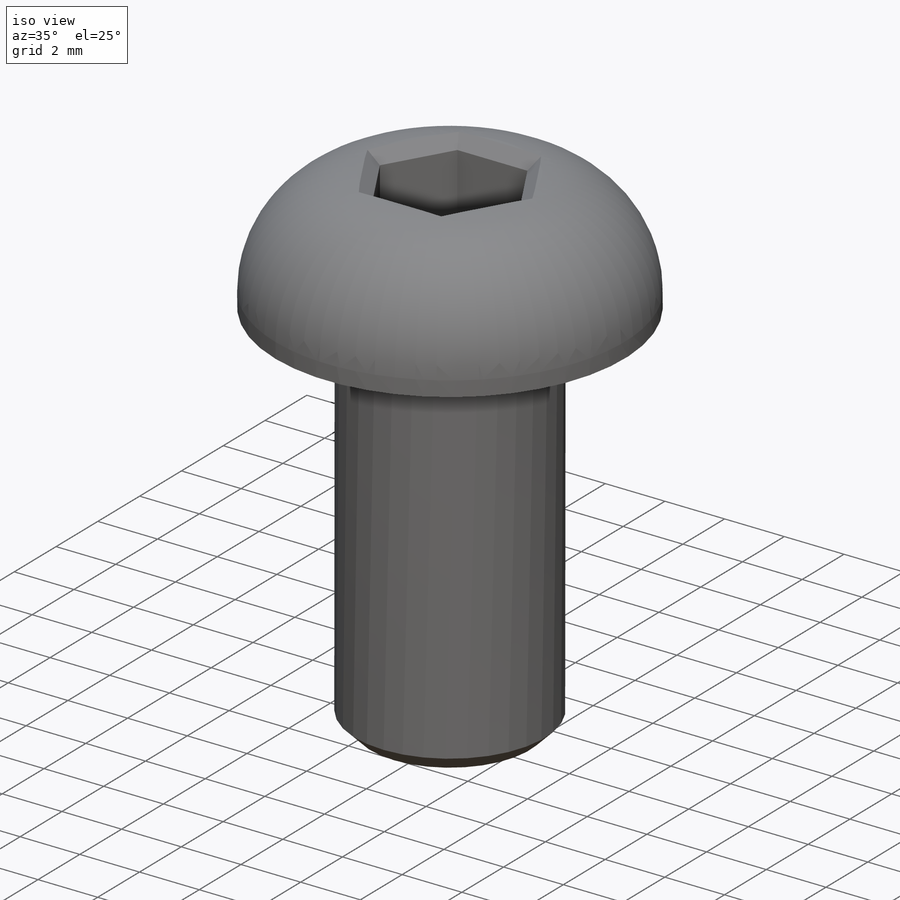
[diagram: iso view]
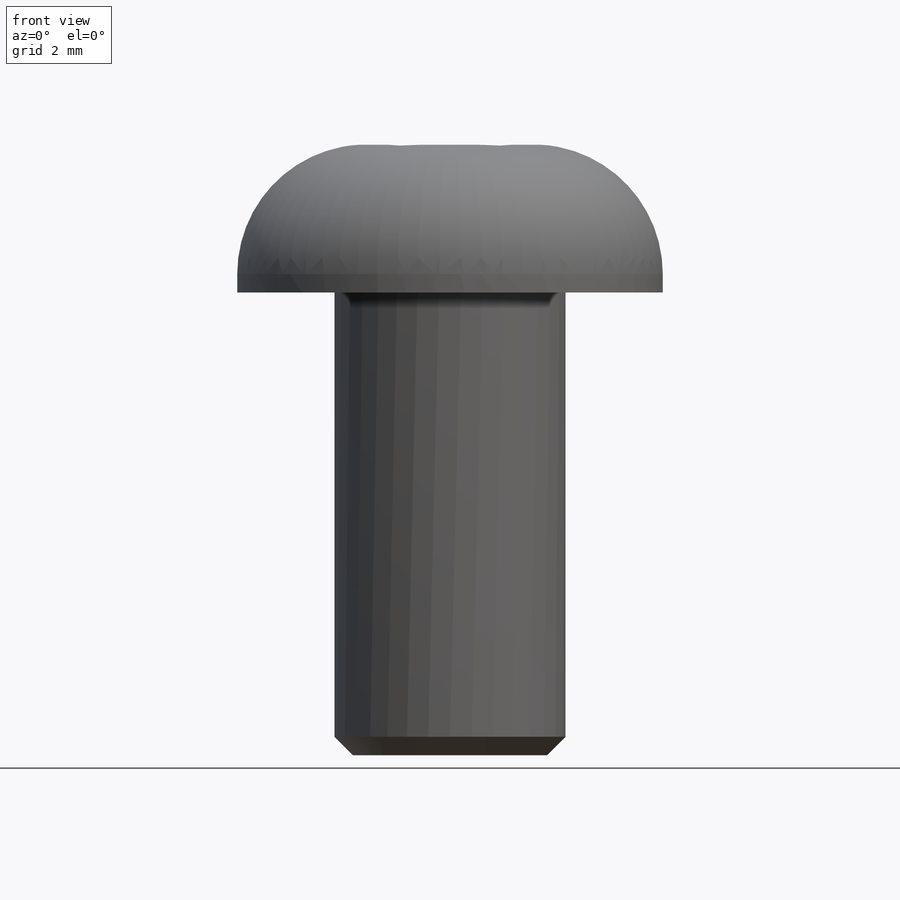
[diagram: front view]
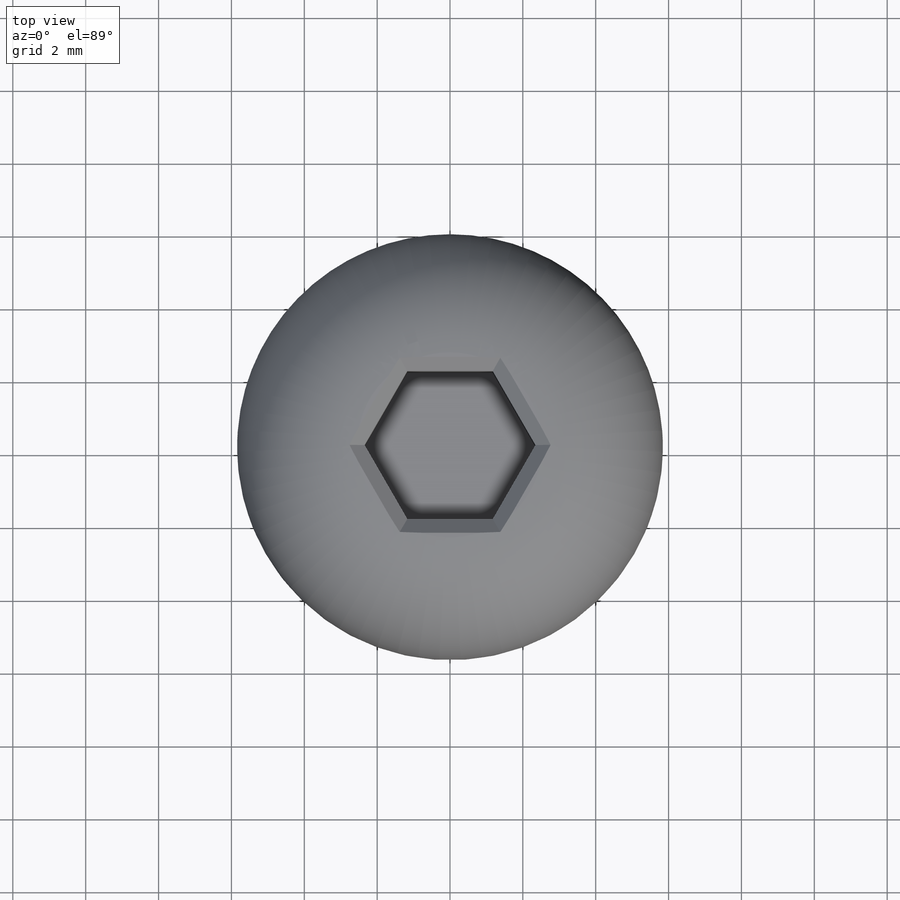
[diagram: top view]
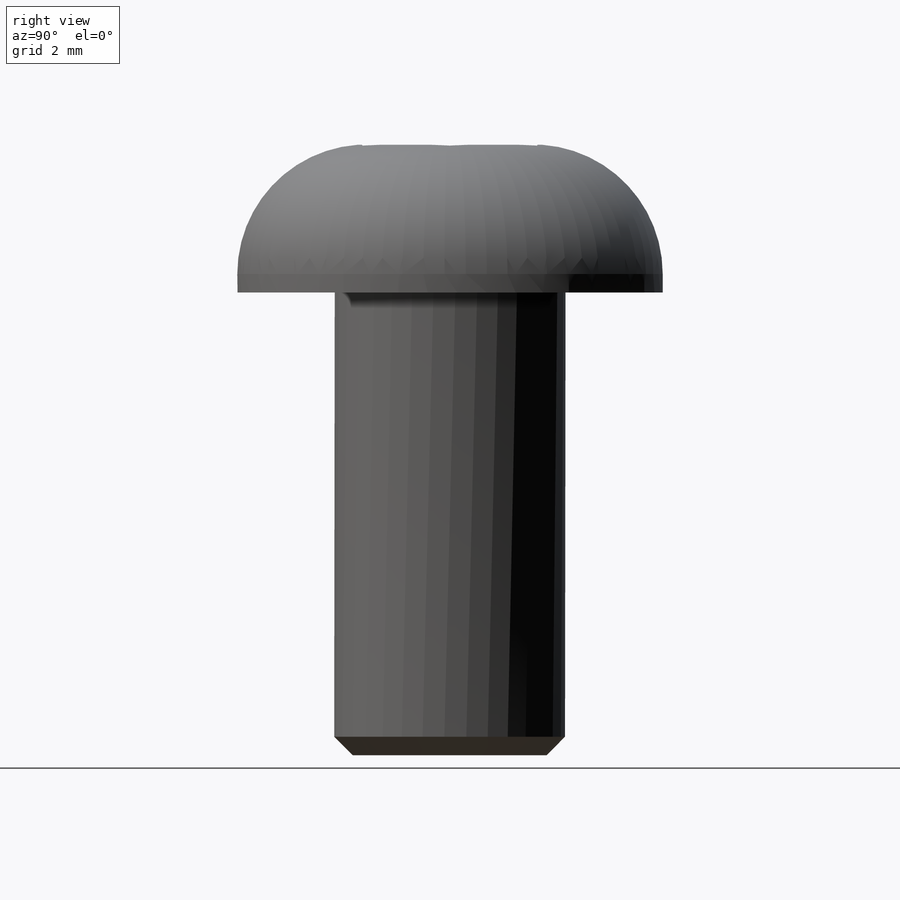
[diagram: right view]
SOLIDWORKS PART (.sldprt)
format: sldprt  version: not decoded by parser v0  size: 246,272 bytes
history: native  units: mm
features: chamfer x3, sketch x2, material x1, revolve x1, cut_extrude x1 (+16 scaffold rows collapsed)
feature tree (24):
  scaffold x16  (default folders/planes/origin — collapsed)
  material  "AISI 304"
  sketch  "Sketch1"  dims[D1=3.556mm D2=4.572mm D3=0.508mm D4=0.508mm D5=11.684mm D6=6.35mm D7=~16.754917mm D8=2.54mm]
  revolve  "Revolve1"  Angle=360deg
  sketch  "Sketch2"  dims[D1=4.064mm]
  cut_extrude  "Extrude1"  Depth=3.0477mm
  chamfer  "Chamfer1"  Distance=0.381mm Angle=45deg
  chamfer  "Chamfer2"  Distance=0.381mm Angle=45deg
  chamfer  "Chamfer3"  Distance=0.508mm Angle=45deg ModelUUID=0mm UUID=0mm
decode coverage: 7 of 7 modeling features carry decoded parameters
note: ~ marks probable driven/reference dimensions
note: suppression state not decoded; provenance and decode notes live in map.json
